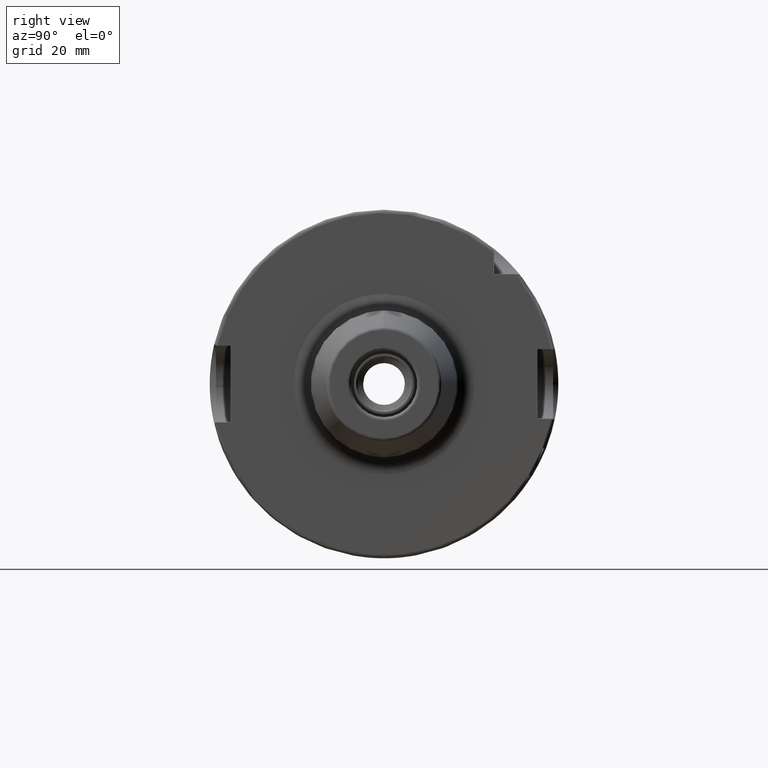
[diagram: clean part render]
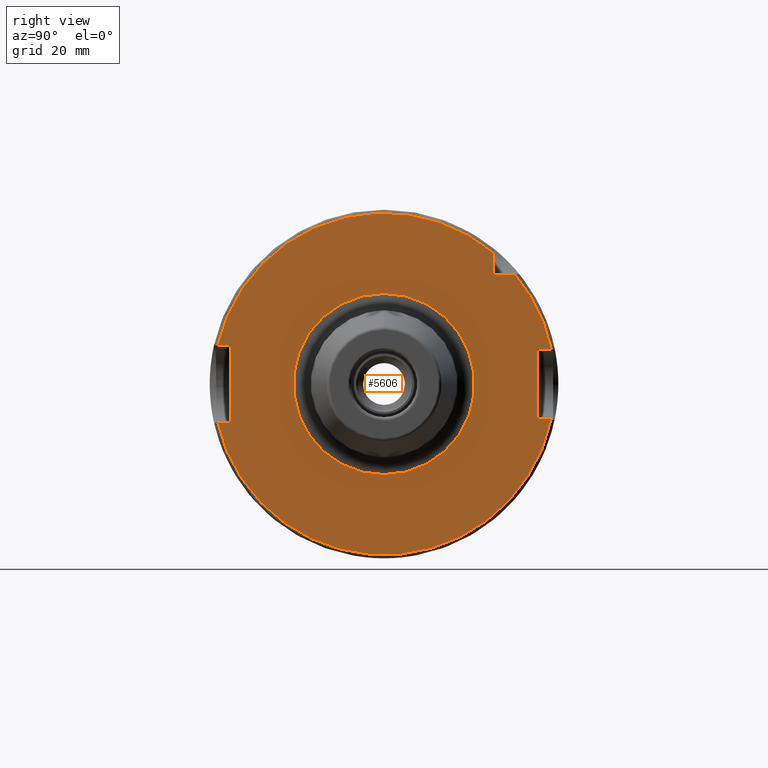
[diagram: same view with one face highlighted and labeled with its STEP entity id]
A machine part, right view. The second image highlights one B-rep face of the part: STEP entity #5606.
In plain terms, the highlighted planar face has unit normal (1, 0, 0).
Its self-contained STEP definition (entity closure, byte-faithful):
#1623=DIRECTION('',(0.E0,0.E0,1.E0));
#1624=VECTOR('',#1623,6.033318531672E0);
#1625=CARTESIAN_POINT('',(2.9E1,3.15E1,3.15E1));
#1626=LINE('',#1625,#1624);
#1747=DIRECTION('',(0.E0,1.E0,0.E0));
#1748=VECTOR('',#1747,3.968739820847E0);
#1749=CARTESIAN_POINT('',(2.9E1,4.4E1,1.E1));
#1750=LINE('',#1749,#1748);
#1925=DIRECTION('',(0.E0,0.E0,-1.E0));
#1926=VECTOR('',#1925,2.2E1);
#1927=CARTESIAN_POINT('',(2.9E1,-4.4E1,1.1E1));
#1928=LINE('',#1927,#1926);
#1942=CARTESIAN_POINT('',(2.9E1,0.E0,0.E0));
#1943=DIRECTION('',(-1.E0,0.E0,0.E0));
#1944=DIRECTION('',(0.E0,9.789538738948E-1,-2.040816326531E-1));
#1945=AXIS2_PLACEMENT_3D('',#1942,#1943,#1944);
#1947=DIRECTION('',(0.E0,-1.E0,0.E0));
#1948=VECTOR('',#1947,3.749345545252E0);
#1949=CARTESIAN_POINT('',(2.9E1,-4.4E1,1.1E1));
#1950=LINE('',#1949,#1948);
#1951=CARTESIAN_POINT('',(2.9E1,0.E0,0.E0));
#1952=DIRECTION('',(-1.E0,0.E0,0.E0));
#1953=DIRECTION('',(0.E0,-9.744764396990E-1,2.244897959184E-1));
#1954=AXIS2_PLACEMENT_3D('',#1951,#1952,#1953);
#1956=DIRECTION('',(0.E0,1.E0,0.E0));
#1957=VECTOR('',#1956,6.033318531672E0);
#1958=CARTESIAN_POINT('',(2.9E1,3.15E1,3.15E1));
#1959=LINE('',#1958,#1957);
#1960=CARTESIAN_POINT('',(2.9E1,0.E0,0.E0));
#1961=DIRECTION('',(-1.E0,0.E0,0.E0));
#1962=DIRECTION('',(0.E0,7.659860924831E-1,6.428571428571E-1));
#1963=AXIS2_PLACEMENT_3D('',#1960,#1961,#1962);
#1965=DIRECTION('',(0.E0,1.E0,0.E0));
#1966=VECTOR('',#1965,3.968739820847E0);
#1967=CARTESIAN_POINT('',(2.9E1,4.4E1,-1.E1));
#1968=LINE('',#1967,#1966);
#1969=CARTESIAN_POINT('',(2.9E1,0.E0,0.E0));
#1970=DIRECTION('',(1.E0,0.E0,0.E0));
#1971=DIRECTION('',(0.E0,0.E0,-1.E0));
#1972=AXIS2_PLACEMENT_3D('',#1969,#1970,#1971);
#1974=CARTESIAN_POINT('',(2.9E1,0.E0,0.E0));
#1975=DIRECTION('',(1.E0,0.E0,0.E0));
#1976=DIRECTION('',(0.E0,0.E0,1.E0));
#1977=AXIS2_PLACEMENT_3D('',#1974,#1975,#1976);
#2048=DIRECTION('',(0.E0,0.E0,1.E0));
#2049=VECTOR('',#2048,2.E1);
#2050=CARTESIAN_POINT('',(2.9E1,4.4E1,-1.E1));
#2051=LINE('',#2050,#2049);
#2088=CARTESIAN_POINT('',(2.9E1,-4.774934554525E1,-1.1E1));
#2107=DIRECTION('',(0.E0,-1.E0,0.E0));
#2108=VECTOR('',#2107,3.749345545252E0);
#2109=CARTESIAN_POINT('',(2.9E1,-4.4E1,-1.1E1));
#2110=LINE('',#2109,#2108);
#3293=VERTEX_POINT('',#2088);
#3294=CARTESIAN_POINT('',(2.9E1,4.796873982085E1,-1.E1));
#3295=VERTEX_POINT('',#3294);
#3337=CARTESIAN_POINT('',(2.9E1,4.4E1,-1.E1));
#3338=VERTEX_POINT('',#3337);
#3347=CARTESIAN_POINT('',(2.9E1,-4.4E1,-1.1E1));
#3348=VERTEX_POINT('',#3347);
#3349=CARTESIAN_POINT('',(2.9E1,-4.4E1,1.1E1));
#3350=VERTEX_POINT('',#3349);
#3351=CARTESIAN_POINT('',(2.9E1,-4.774934554525E1,1.1E1));
#3352=VERTEX_POINT('',#3351);
#3353=CARTESIAN_POINT('',(2.9E1,3.15E1,3.753331853167E1));
#3354=VERTEX_POINT('',#3353);
#3355=CARTESIAN_POINT('',(2.9E1,3.15E1,3.15E1));
#3356=VERTEX_POINT('',#3355);
#3357=CARTESIAN_POINT('',(2.9E1,3.753331853167E1,3.15E1));
#3358=VERTEX_POINT('',#3357);
#3359=CARTESIAN_POINT('',(2.9E1,4.796873982085E1,1.E1));
#3360=VERTEX_POINT('',#3359);
#3361=CARTESIAN_POINT('',(2.9E1,4.4E1,1.E1));
#3362=VERTEX_POINT('',#3361);
#3363=CARTESIAN_POINT('',(2.9E1,0.E0,-2.6E1));
#3364=CARTESIAN_POINT('',(2.9E1,0.E0,2.6E1));
#3365=VERTEX_POINT('',#3363);
#3366=VERTEX_POINT('',#3364);
#5578=CARTESIAN_POINT('',(2.9E1,0.E0,0.E0));
#5579=DIRECTION('',(1.E0,0.E0,0.E0));
#5580=DIRECTION('',(0.E0,0.E0,1.E0));
#5581=AXIS2_PLACEMENT_3D('',#5578,#5579,#5580);
#5582=PLANE('',#5581);
#5584=ORIENTED_EDGE('',*,*,#5583,.T.);
#5586=ORIENTED_EDGE('',*,*,#5585,.F.);
#5587=ORIENTED_EDGE('',*,*,#5567,.F.);
#5588=ORIENTED_EDGE('',*,*,#5098,.T.);
#5589=ORIENTED_EDGE('',*,*,#5130,.T.);
#5590=ORIENTED_EDGE('',*,*,#5223,.F.);
#5591=ORIENTED_EDGE('',*,*,#5277,.T.);
#5592=ORIENTED_EDGE('',*,*,#5308,.T.);
#5593=ORIENTED_EDGE('',*,*,#5379,.F.);
#5595=ORIENTED_EDGE('',*,*,#5594,.F.);
#5597=ORIENTED_EDGE('',*,*,#5596,.T.);
#5598=EDGE_LOOP('',(#5584,#5586,#5587,#5588,#5589,#5590,#5591,#5592,#5593,#5595,
#5597));
#5599=FACE_OUTER_BOUND('',#5598,.F.);
#5601=ORIENTED_EDGE('',*,*,#5600,.T.);
#5603=ORIENTED_EDGE('',*,*,#5602,.T.);
#5604=EDGE_LOOP('',(#5601,#5603));
#5605=FACE_BOUND('',#5604,.F.);
#5606=ADVANCED_FACE('',(#5599,#5605),#5582,.T.);
#1946=CIRCLE('',#1945,4.9E1);
#1955=CIRCLE('',#1954,4.9E1);
#1964=CIRCLE('',#1963,4.9E1);
#1973=CIRCLE('',#1972,2.6E1);
#1978=CIRCLE('',#1977,2.6E1);
#5098=EDGE_CURVE('',#3350,#3352,#1950,.T.);
#5130=EDGE_CURVE('',#3352,#3354,#1955,.T.);
#5223=EDGE_CURVE('',#3356,#3354,#1626,.T.);
#5277=EDGE_CURVE('',#3356,#3358,#1959,.T.);
#5308=EDGE_CURVE('',#3358,#3360,#1964,.T.);
#5379=EDGE_CURVE('',#3362,#3360,#1750,.T.);
#5567=EDGE_CURVE('',#3350,#3348,#1928,.T.);
#5583=EDGE_CURVE('',#3295,#3293,#1946,.T.);
#5585=EDGE_CURVE('',#3348,#3293,#2110,.T.);
#5594=EDGE_CURVE('',#3338,#3362,#2051,.T.);
#5596=EDGE_CURVE('',#3338,#3295,#1968,.T.);
#5600=EDGE_CURVE('',#3365,#3366,#1973,.T.);
#5602=EDGE_CURVE('',#3366,#3365,#1978,.T.);